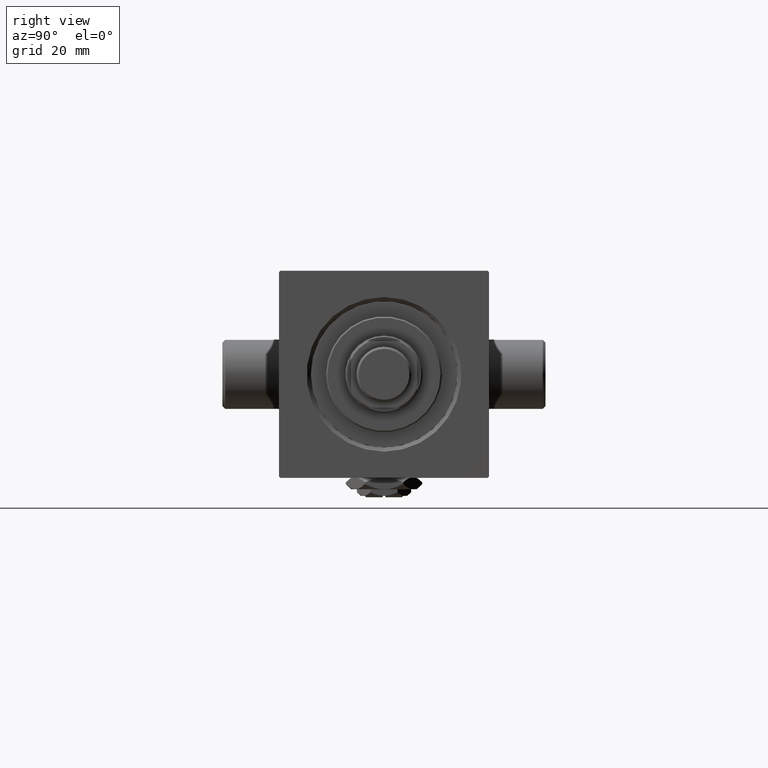
[diagram: clean part render]
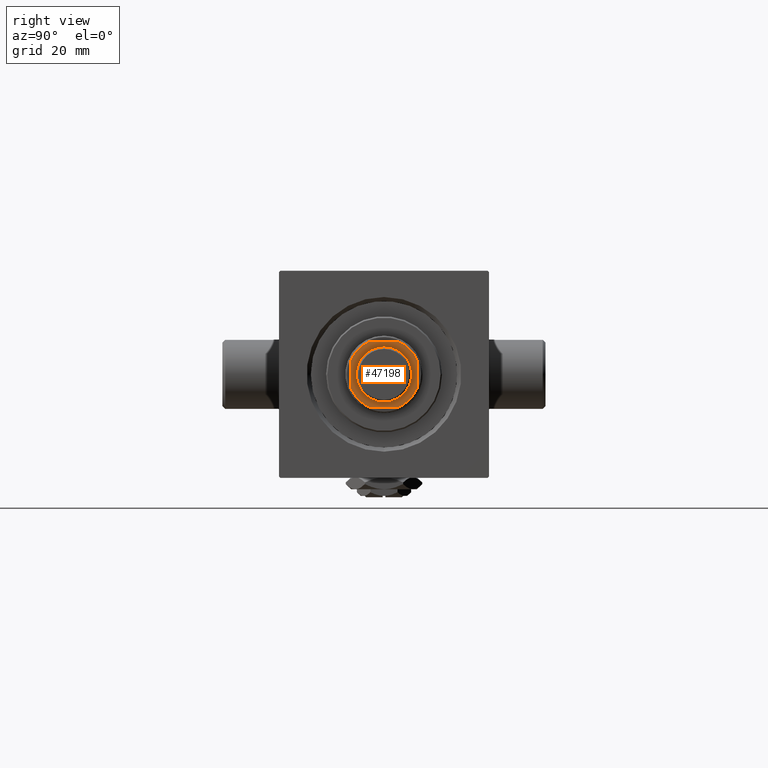
[diagram: same view with one face highlighted and labeled with its STEP entity id]
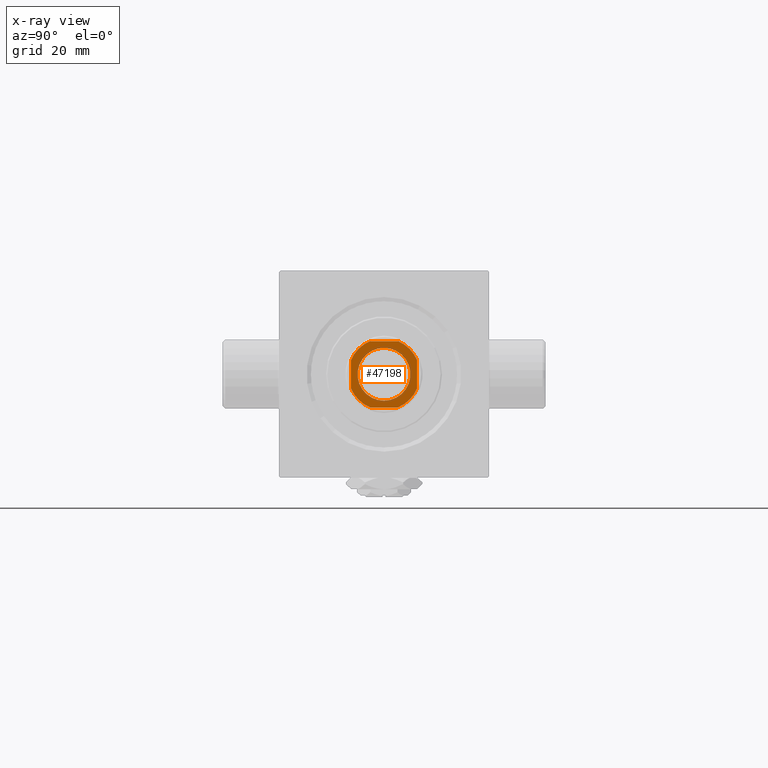
[diagram: x-ray of the same camera — body ghosted, the highlighted face saturated]
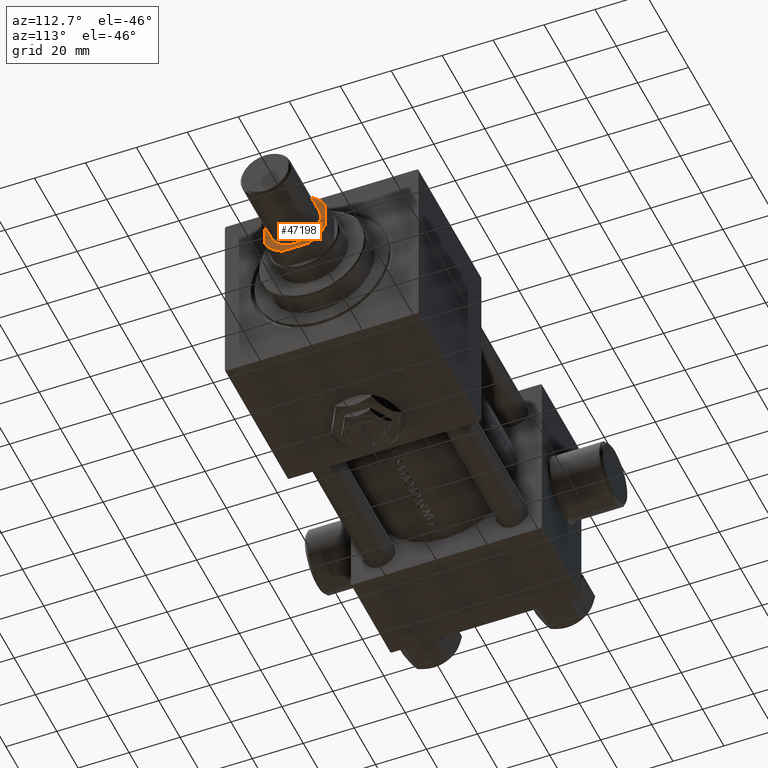
[diagram: same view with one face highlighted and labeled with its STEP entity id]
A machine part, right view. The second image highlights one B-rep face of the part: STEP entity #47198.
The next image is the same camera in x-ray: the body ghosted, the highlighted face saturated — about 0% of this face is hidden behind the body in this view.
A second angle (auxiliary view) of the same face is appended — the face is thin or edge-on in the first view.
In plain terms, the highlighted planar face has unit normal (1, 0, 0).
Its self-contained STEP definition (entity closure, byte-faithful):
#81 = CARTESIAN_POINT ( 'NONE',  ( -12.00000000000000000, 4.999999999999936051, 142.0000000000000284 ) ) ;
#438 = ORIENTED_EDGE ( 'NONE', *, *, #22110, .T. ) ;
#1363 = VERTEX_POINT ( 'NONE', #41055 ) ;
#2311 = DIRECTION ( 'NONE',  ( 0.000000000000000000, -0.000000000000000000, -1.000000000000000000 ) ) ;
#3070 = CARTESIAN_POINT ( 'NONE',  ( 12.00000000000000178, -4.999999999999976907, 142.0000000000000284 ) ) ;
#3280 = VERTEX_POINT ( 'NONE', #42778 ) ;
#3522 = AXIS2_PLACEMENT_3D ( 'NONE', #12560, #20241, #4868 ) ;
#3655 = CARTESIAN_POINT ( 'NONE',  ( -12.00000000000000000, -4.999999999999980460, 142.0000000000000284 ) ) ;
#4424 = DIRECTION ( 'NONE',  ( -2.891205793294678326E-16, 1.000000000000000000, -0.000000000000000000 ) ) ;
#4445 = DIRECTION ( 'NONE',  ( 1.000000000000000000, 0.000000000000000000, 0.000000000000000000 ) ) ;
#4868 = DIRECTION ( 'NONE',  ( 1.000000000000000000, 0.000000000000000000, 0.000000000000000000 ) ) ;
#5562 = CARTESIAN_POINT ( 'NONE',  ( 0.000000000000000000, 0.000000000000000000, 142.0000000000000284 ) ) ;
#6058 = EDGE_LOOP ( 'NONE', ( #29331, #11033, #35298, #8867, #38893, #33219, #438, #20664 ) ) ;
#7276 = CARTESIAN_POINT ( 'NONE',  ( 11.99999999999999822, 4.999999999999980460, 142.0000000000000284 ) ) ;
#7297 = EDGE_CURVE ( 'NONE', #8691, #33899, #41314, .T. ) ;
#8651 = CARTESIAN_POINT ( 'NONE',  ( 11.99999999999999645, 11.99999999999999645, 142.0000000000000284 ) ) ;
#8691 = VERTEX_POINT ( 'NONE', #3655 ) ;
#8867 = ORIENTED_EDGE ( 'NONE', *, *, #18810, .T. ) ;
#8916 = LINE ( 'NONE', #24498, #30443 ) ;
#10632 = DIRECTION ( 'NONE',  ( 1.000000000000000000, 0.000000000000000000, 0.000000000000000000 ) ) ;
#11033 = ORIENTED_EDGE ( 'NONE', *, *, #22975, .T. ) ;
#11081 = CARTESIAN_POINT ( 'NONE',  ( 0.000000000000000000, 0.000000000000000000, 142.0000000000000284 ) ) ;
#11287 = EDGE_CURVE ( 'NONE', #34798, #13551, #25496, .T. ) ;
#12107 = DIRECTION ( 'NONE',  ( 7.228014483236695816E-17, -1.000000000000000000, 0.000000000000000000 ) ) ;
#12396 = CARTESIAN_POINT ( 'NONE',  ( 4.999999999999971578, -12.00000000000000355, 142.0000000000000284 ) ) ;
#12425 = DIRECTION ( 'NONE',  ( -0.000000000000000000, 0.000000000000000000, 1.000000000000000000 ) ) ;
#12560 = CARTESIAN_POINT ( 'NONE',  ( 0.000000000000000000, 0.000000000000000000, 142.0000000000000284 ) ) ;
#13551 = VERTEX_POINT ( 'NONE', #3070 ) ;
#15292 = VERTEX_POINT ( 'NONE', #7276 ) ;
#16285 = CARTESIAN_POINT ( 'NONE',  ( -4.999999999999971578, -12.00000000000000355, 142.0000000000000284 ) ) ;
#18220 = DIRECTION ( 'NONE',  ( 1.000000000000000000, 0.000000000000000000, 0.000000000000000000 ) ) ;
#18260 = EDGE_CURVE ( 'NONE', #3280, #26745, #47336, .T. ) ;
#18271 = DIRECTION ( 'NONE',  ( -0.000000000000000000, 0.000000000000000000, 1.000000000000000000 ) ) ;
#18574 = CIRCLE ( 'NONE', #42324, 12.99999999999999112 ) ;
#18810 = EDGE_CURVE ( 'NONE', #26745, #24338, #21745, .T. ) ;
#19643 = ORIENTED_EDGE ( 'NONE', *, *, #31228, .T. ) ;
#19952 = AXIS2_PLACEMENT_3D ( 'NONE', #23318, #12425, #18220 ) ;
#20241 = DIRECTION ( 'NONE',  ( -0.000000000000000000, 0.000000000000000000, 1.000000000000000000 ) ) ;
#20439 = DIRECTION ( 'NONE',  ( 1.000000000000000000, 0.000000000000000000, 0.000000000000000000 ) ) ;
#20664 = ORIENTED_EDGE ( 'NONE', *, *, #11287, .T. ) ;
#21520 = DIRECTION ( 'NONE',  ( -0.000000000000000000, 0.000000000000000000, 1.000000000000000000 ) ) ;
#21745 = CIRCLE ( 'NONE', #3522, 12.99999999999997513 ) ;
#22110 = EDGE_CURVE ( 'NONE', #33899, #34798, #8916, .T. ) ;
#22313 = LINE ( 'NONE', #46290, #41907 ) ;
#22975 = EDGE_CURVE ( 'NONE', #15292, #3280, #18574, .T. ) ;
#23318 = CARTESIAN_POINT ( 'NONE',  ( 0.000000000000000000, 0.000000000000000000, 142.0000000000000284 ) ) ;
#24338 = VERTEX_POINT ( 'NONE', #81 ) ;
#24498 = CARTESIAN_POINT ( 'NONE',  ( -11.99999999999999822, -12.00000000000000355, 142.0000000000000284 ) ) ;
#25004 = EDGE_CURVE ( 'NONE', #13551, #15292, #34651, .T. ) ;
#25181 = ORIENTED_EDGE ( 'NONE', *, *, #26350, .T. ) ;
#25461 = FACE_OUTER_BOUND ( 'NONE', #6058, .T. ) ;
#25496 = CIRCLE ( 'NONE', #46849, 12.99999999999999289 ) ;
#25593 = DIRECTION ( 'NONE',  ( 1.000000000000000000, 0.000000000000000000, 0.000000000000000000 ) ) ;
#26350 = EDGE_CURVE ( 'NONE', #31292, #1363, #45572, .T. ) ;
#26745 = VERTEX_POINT ( 'NONE', #30660 ) ;
#28459 = DIRECTION ( 'NONE',  ( 1.000000000000000000, 0.000000000000000000, 0.000000000000000000 ) ) ;
#28493 = DIRECTION ( 'NONE',  ( -1.000000000000000000, -0.000000000000000000, -0.000000000000000000 ) ) ;
#29331 = ORIENTED_EDGE ( 'NONE', *, *, #25004, .T. ) ;
#29898 = PLANE ( 'NONE',  #43013 ) ;
#29904 = AXIS2_PLACEMENT_3D ( 'NONE', #5562, #34812, #20439 ) ;
#30443 = VECTOR ( 'NONE', #4445, 1000.000000000000000 ) ;
#30554 = AXIS2_PLACEMENT_3D ( 'NONE', #36506, #2311, #25593 ) ;
#30660 = CARTESIAN_POINT ( 'NONE',  ( -4.999999999999944933, 11.99999999999999645, 142.0000000000000284 ) ) ;
#31228 = EDGE_CURVE ( 'NONE', #1363, #31292, #32335, .T. ) ;
#31292 = VERTEX_POINT ( 'NONE', #46949 ) ;
#31705 = CARTESIAN_POINT ( 'NONE',  ( 0.000000000000000000, 0.000000000000000000, 142.0000000000000284 ) ) ;
#31992 = CARTESIAN_POINT ( 'NONE',  ( -12.00000000000000000, 11.99999999999999645, 142.0000000000000284 ) ) ;
#32335 = CIRCLE ( 'NONE', #29904, 9.550000000000002487 ) ;
#33219 = ORIENTED_EDGE ( 'NONE', *, *, #7297, .T. ) ;
#33389 = FACE_BOUND ( 'NONE', #41710, .T. ) ;
#33899 = VERTEX_POINT ( 'NONE', #16285 ) ;
#34651 = LINE ( 'NONE', #8651, #44742 ) ;
#34798 = VERTEX_POINT ( 'NONE', #12396 ) ;
#34812 = DIRECTION ( 'NONE',  ( 0.000000000000000000, -0.000000000000000000, -1.000000000000000000 ) ) ;
#35298 = ORIENTED_EDGE ( 'NONE', *, *, #18260, .T. ) ;
#36506 = CARTESIAN_POINT ( 'NONE',  ( 0.000000000000000000, 0.000000000000000000, 142.0000000000000284 ) ) ;
#36753 = VECTOR ( 'NONE', #28493, 1000.000000000000000 ) ;
#38064 = EDGE_CURVE ( 'NONE', #24338, #8691, #22313, .T. ) ;
#38893 = ORIENTED_EDGE ( 'NONE', *, *, #38064, .T. ) ;
#39888 = CARTESIAN_POINT ( 'NONE',  ( 0.000000000000000000, 0.000000000000000000, 142.0000000000000284 ) ) ;
#41055 = CARTESIAN_POINT ( 'NONE',  ( 9.550000000000002487, 0.000000000000000000, 142.0000000000000284 ) ) ;
#41314 = CIRCLE ( 'NONE', #19952, 12.99999999999999289 ) ;
#41710 = EDGE_LOOP ( 'NONE', ( #19643, #25181 ) ) ;
#41907 = VECTOR ( 'NONE', #12107, 1000.000000000000000 ) ;
#42324 = AXIS2_PLACEMENT_3D ( 'NONE', #39888, #21520, #10632 ) ;
#42778 = CARTESIAN_POINT ( 'NONE',  ( 4.999999999999984013, 11.99999999999999645, 142.0000000000000284 ) ) ;
#42870 = DIRECTION ( 'NONE',  ( -0.000000000000000000, 0.000000000000000000, 1.000000000000000000 ) ) ;
#43013 = AXIS2_PLACEMENT_3D ( 'NONE', #11081, #18271, #48483 ) ;
#44742 = VECTOR ( 'NONE', #4424, 1000.000000000000000 ) ;
#45572 = CIRCLE ( 'NONE', #30554, 9.550000000000002487 ) ;
#46290 = CARTESIAN_POINT ( 'NONE',  ( -12.00000000000000000, 11.99999999999999645, 142.0000000000000284 ) ) ;
#46849 = AXIS2_PLACEMENT_3D ( 'NONE', #31705, #42870, #28459 ) ;
#46949 = CARTESIAN_POINT ( 'NONE',  ( -9.550000000000002487, 1.169537693185722558E-15, 142.0000000000000284 ) ) ;
#47198 = ADVANCED_FACE ( 'NONE', ( #33389, #25461 ), #29898, .T. ) ;
#47336 = LINE ( 'NONE', #31992, #36753 ) ;
#48483 = DIRECTION ( 'NONE',  ( 1.000000000000000000, 0.000000000000000000, 0.000000000000000000 ) ) ;